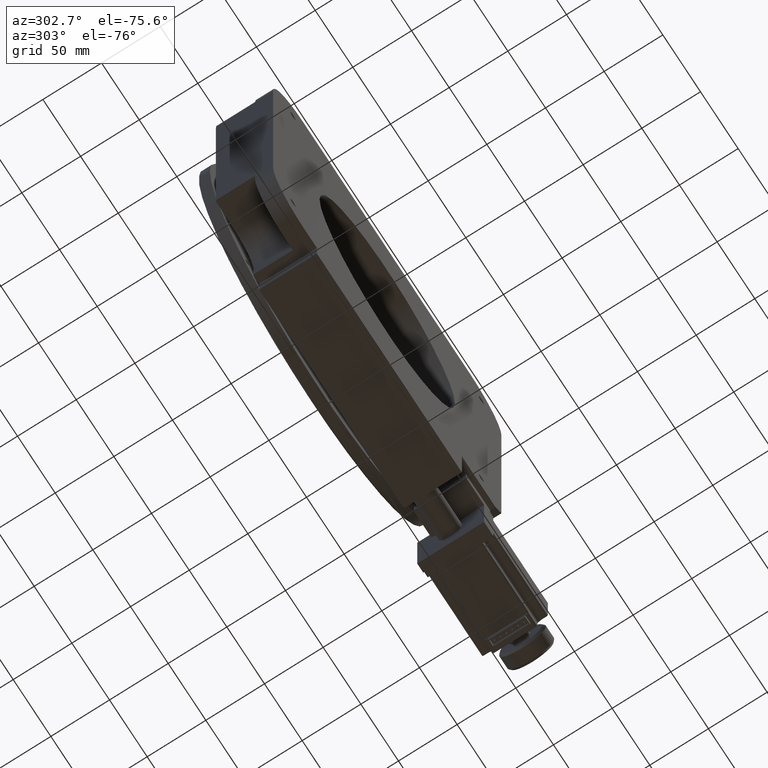
[diagram: clean part render]
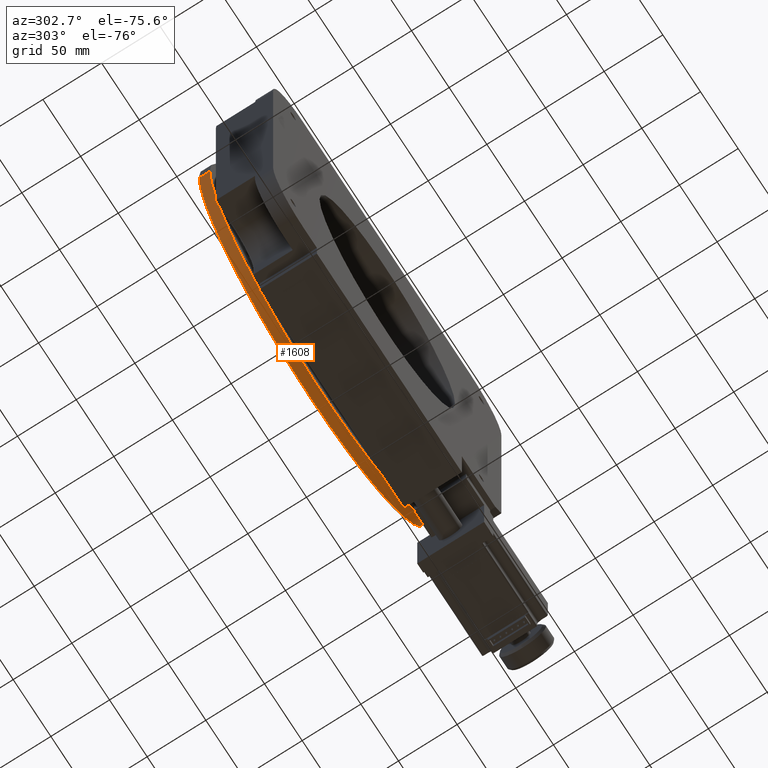
[diagram: same view with one face highlighted and labeled with its STEP entity id]
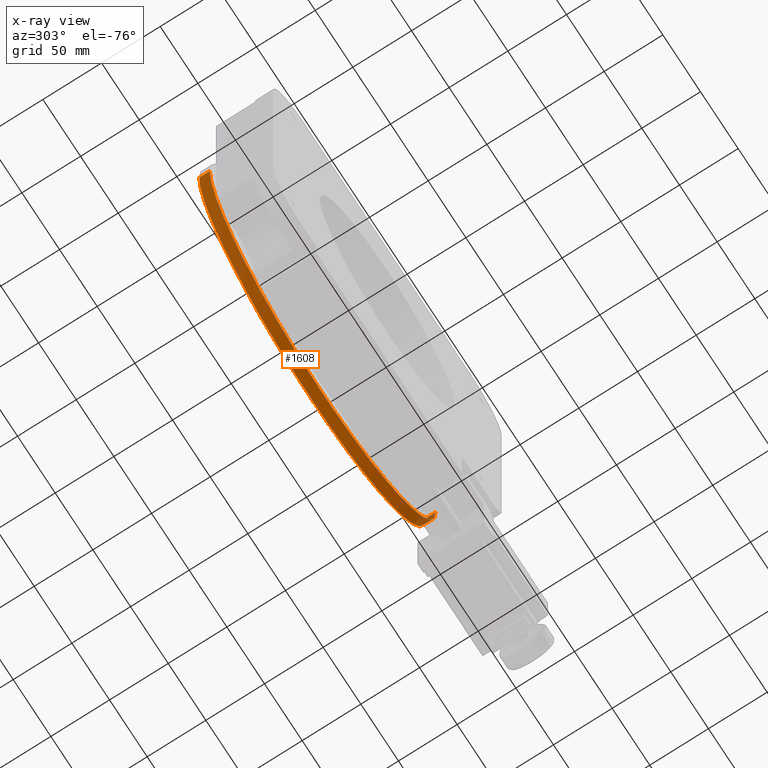
[diagram: x-ray of the same camera — body ghosted, the highlighted face saturated]
A machine part, auxiliary view. The second image highlights one B-rep face of the part: STEP entity #1608.
The next image is the same camera in x-ray: the body ghosted, the highlighted face saturated — about 3% of this face is hidden behind the body in this view.
In plain terms, the highlighted cylindrical surface (partial cylindrical patch) has radius 150 mm, axis along (-0, -1, 0).
Its self-contained STEP definition (entity closure, byte-faithful):
#719 = VERTEX_POINT ( 'NONE', #9858 ) ;
#776 = AXIS2_PLACEMENT_3D ( 'NONE', #6421, #12558, #7694 ) ;
#1270 = CARTESIAN_POINT ( 'NONE',  ( 1.500000000000084600, 65.00000000000000000, -151.5000000000001100 ) ) ;
#1608 = ADVANCED_FACE ( 'NONE', ( #10673 ), #14576, .T. ) ;
#1946 = CARTESIAN_POINT ( 'NONE',  ( 301.4999999999998900, 64.00000000000014200, -151.5000000000000900 ) ) ;
#2220 = DIRECTION ( 'NONE',  ( -1.502143935577754100E-016, -1.000000000000000000, 3.534798453467996800E-032 ) ) ;
#2507 = AXIS2_PLACEMENT_3D ( 'NONE', #14526, #9880, #5226 ) ;
#2708 = ORIENTED_EDGE ( 'NONE', *, *, #14079, .T. ) ;
#3136 = DIRECTION ( 'NONE',  ( -1.000000000000000000, 1.850371707708595300E-016, -1.850371707708595300E-016 ) ) ;
#3346 = CARTESIAN_POINT ( 'NONE',  ( 301.4999999999998900, 54.99999999999995700, -151.5000000000000900 ) ) ;
#3449 = EDGE_CURVE ( 'NONE', #11207, #719, #12281, .T. ) ;
#4227 = CARTESIAN_POINT ( 'NONE',  ( 151.5000000000000000, 64.00000000000017100, -151.5000000000000900 ) ) ;
#4312 = VECTOR ( 'NONE', #2220, 1000.000000000000000 ) ;
#4975 = EDGE_CURVE ( 'NONE', #9518, #719, #8435, .T. ) ;
#5226 = DIRECTION ( 'NONE',  ( -1.000000000000000000, 1.850371707708595300E-016, -1.850371707708595300E-016 ) ) ;
#5305 = ORIENTED_EDGE ( 'NONE', *, *, #12055, .T. ) ;
#5617 = AXIS2_PLACEMENT_3D ( 'NONE', #15148, #15207, #13894 ) ;
#5650 = CARTESIAN_POINT ( 'NONE',  ( 1.500000000000084600, 64.00000000000019900, -151.5000000000001100 ) ) ;
#6421 = CARTESIAN_POINT ( 'NONE',  ( 151.5000000000000000, 54.99999999999997900, -151.5000000000000900 ) ) ;
#7070 = ORIENTED_EDGE ( 'NONE', *, *, #4975, .F. ) ;
#7425 = EDGE_LOOP ( 'NONE', ( #8846, #5305, #15353, #7070, #2708 ) ) ;
#7694 = DIRECTION ( 'NONE',  ( -1.000000000000000000, 1.387778780781446400E-016, -1.850371707708595300E-016 ) ) ;
#8435 = LINE ( 'NONE', #1270, #13663 ) ;
#8846 = ORIENTED_EDGE ( 'NONE', *, *, #11800, .T. ) ;
#9398 = LINE ( 'NONE', #12938, #4312 ) ;
#9518 = VERTEX_POINT ( 'NONE', #5650 ) ;
#9858 = CARTESIAN_POINT ( 'NONE',  ( 1.500000000000084600, 55.00000000000000000, -151.5000000000001100 ) ) ;
#9880 = DIRECTION ( 'NONE',  ( -1.502143935577754100E-016, -1.000000000000000000, 3.534798453467996800E-032 ) ) ;
#10086 = VERTEX_POINT ( 'NONE', #10428 ) ;
#10113 = DIRECTION ( 'NONE',  ( -1.502143935577754100E-016, -1.000000000000000000, 3.534798453467996800E-032 ) ) ;
#10180 = AXIS2_PLACEMENT_3D ( 'NONE', #4227, #10113, #3136 ) ;
#10428 = CARTESIAN_POINT ( 'NONE',  ( 151.5000000000000000, 64.00000000000017100, -301.5000000000000000 ) ) ;
#10673 = FACE_OUTER_BOUND ( 'NONE', #7425, .T. ) ;
#10776 = CIRCLE ( 'NONE', #5617, 149.9999999999999100 ) ;
#11207 = VERTEX_POINT ( 'NONE', #3346 ) ;
#11800 = EDGE_CURVE ( 'NONE', #10086, #12816, #13329, .T. ) ;
#12055 = EDGE_CURVE ( 'NONE', #12816, #11207, #9398, .T. ) ;
#12281 = CIRCLE ( 'NONE', #776, 149.9999999999999100 ) ;
#12558 = DIRECTION ( 'NONE',  ( 1.502143935577754100E-016, 1.000000000000000000, -3.534798453467996800E-032 ) ) ;
#12816 = VERTEX_POINT ( 'NONE', #1946 ) ;
#12938 = CARTESIAN_POINT ( 'NONE',  ( 301.4999999999998900, 64.99999999999994300, -151.5000000000000900 ) ) ;
#13093 = DIRECTION ( 'NONE',  ( -1.502143935577754100E-016, -1.000000000000000000, 3.534798453467996800E-032 ) ) ;
#13329 = CIRCLE ( 'NONE', #10180, 149.9999999999999100 ) ;
#13663 = VECTOR ( 'NONE', #13093, 1000.000000000000000 ) ;
#13894 = DIRECTION ( 'NONE',  ( -1.000000000000000000, 1.850371707708595300E-016, -1.850371707708595300E-016 ) ) ;
#14079 = EDGE_CURVE ( 'NONE', #9518, #10086, #10776, .T. ) ;
#14526 = CARTESIAN_POINT ( 'NONE',  ( 151.5000000000000000, 64.99999999999997200, -151.5000000000000900 ) ) ;
#14576 = CYLINDRICAL_SURFACE ( 'NONE', #2507, 149.9999999999999100 ) ;
#15148 = CARTESIAN_POINT ( 'NONE',  ( 151.5000000000000000, 64.00000000000017100, -151.5000000000000900 ) ) ;
#15207 = DIRECTION ( 'NONE',  ( -1.502143935577754100E-016, -1.000000000000000000, 3.534798453467996800E-032 ) ) ;
#15353 = ORIENTED_EDGE ( 'NONE', *, *, #3449, .T. ) ;